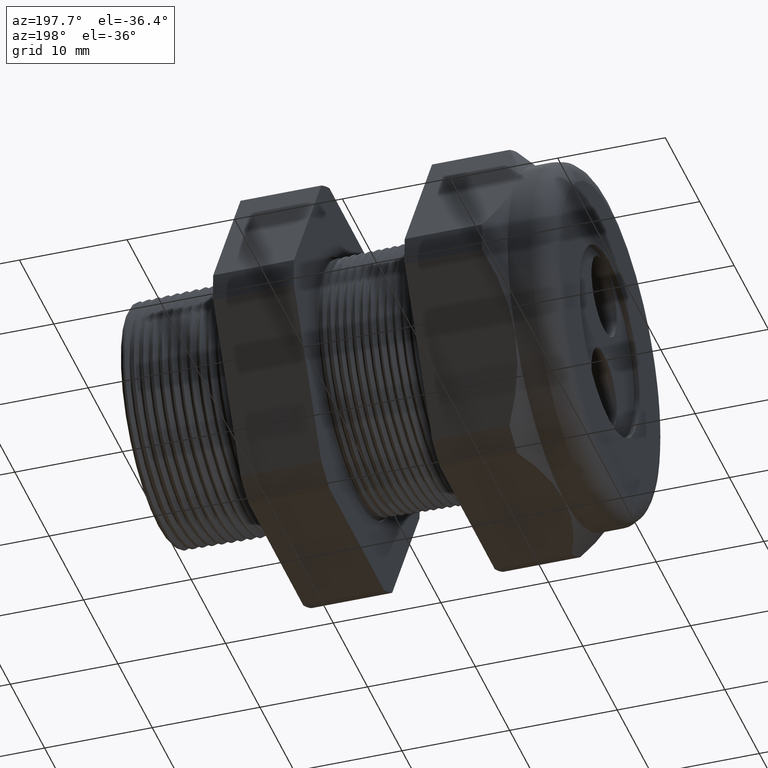
[diagram: clean part render]
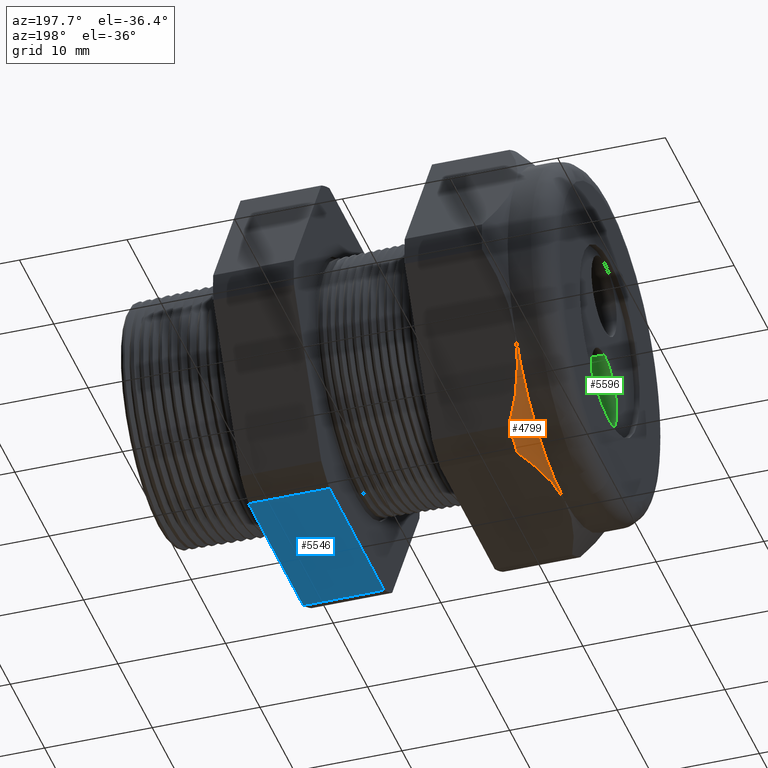
[diagram: same view with three faces highlighted in distinct colors, each labeled with its STEP entity id]
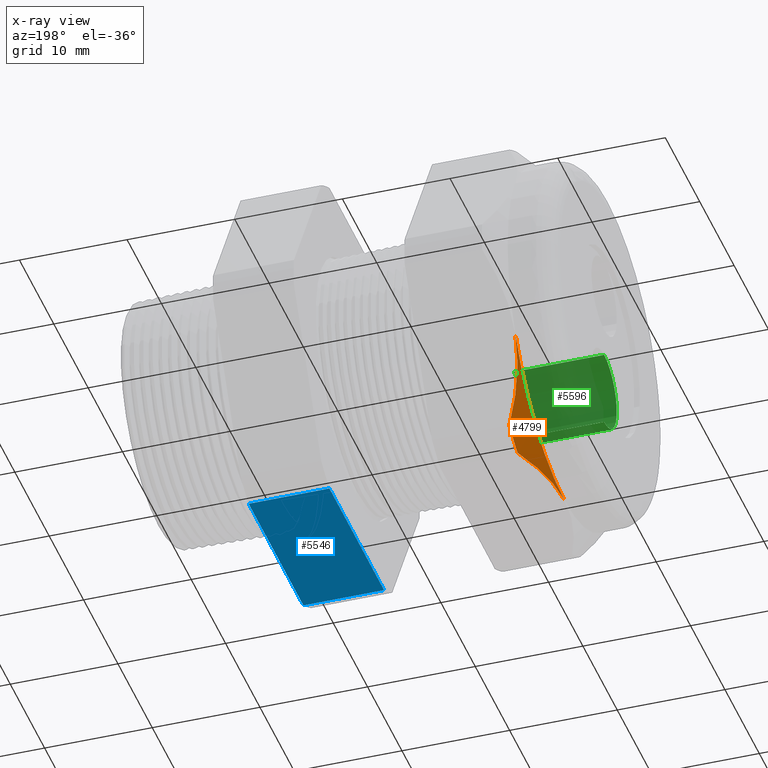
[diagram: x-ray of the same camera — body ghosted, the three highlighted faces saturated]
A machine part, auxiliary view with three faces highlighted in distinct colors.
The next image is the same camera in x-ray (body ghosted, the three faces saturated) — at least one of them is partly hidden behind the body in this view.
Their STEP definitions:

[orange] entity #4799 — the highlighted conical surface has half-angle 45 deg.
#88 = VERTEX_POINT ( 'NONE', #1169 ) ;
#593 = EDGE_CURVE ( 'NONE', #5210, #606, #2186, .T. ) ;
#606 = VERTEX_POINT ( 'NONE', #2222 ) ;
#608 = EDGE_CURVE ( 'NONE', #606, #620, #2221, .T. ) ;
#620 = VERTEX_POINT ( 'NONE', #2194 ) ;
#622 = EDGE_CURVE ( 'NONE', #620, #88, #2259, .T. ) ;
#1169 = CARTESIAN_POINT ( 'NONE',  ( -1.364645669291338500, 0.5629165124598853900, -0.3249999999999999000 ) ) ;
#2176 = CARTESIAN_POINT ( 'NONE',  ( -1.293145669291338600, 0.3131489262315934100, -0.6500000000000001300 ) ) ;
#2177 = CARTESIAN_POINT ( 'NONE',  ( -1.303845930118102500, 0.2884953587440261500, -0.6500000000000003600 ) ) ;
#2178 = CARTESIAN_POINT ( 'NONE',  ( -1.313764154437382800, 0.2632758613625140200, -0.6500000000000001300 ) ) ;
#2179 = CARTESIAN_POINT ( 'NONE',  ( -1.331363564042517700, 0.2120229154253345000, -0.6500000000000001300 ) ) ;
#2180 = CARTESIAN_POINT ( 'NONE',  ( -1.338984633822156300, 0.1861735441654883100, -0.6500000000000003600 ) ) ;
#2181 = CARTESIAN_POINT ( 'NONE',  ( -1.351470867480277300, 0.1339536167969820600, -0.6500000000000003600 ) ) ;
#2182 = CARTESIAN_POINT ( 'NONE',  ( -1.356334391925263900, 0.1075827506458429300, -0.6500000000000000200 ) ) ;
#2183 = CARTESIAN_POINT ( 'NONE',  ( -1.362922968131963000, 0.05424748414116249700, -0.6500000000000001300 ) ) ;
#2184 = CARTESIAN_POINT ( 'NONE',  ( -1.364645669291337800, 0.02720867923416881900, -0.6500000000000000200 ) ) ;
#2185 = CARTESIAN_POINT ( 'NONE',  ( -1.364645669291338500, 0.0000000000000000000, -0.6500000000000001300 ) ) ;
#2186 = B_SPLINE_CURVE_WITH_KNOTS ( 'NONE', 3,
 ( #2185, #2184, #2183, #2182, #2181, #2180, #2179, #2178, #2177, #2176 ),
 .UNSPECIFIED., .F., .F.,
 ( 4, 2, 2, 2, 4 ),
 ( 0.01992119248818193300, 0.02195511425124769100, 0.02398903601431344800, 0.02602295777737920500, 0.02805687954044496300 ),
 .UNSPECIFIED. ) ;
#2194 = CARTESIAN_POINT ( 'NONE',  ( -1.293145669291338600, 0.4063420493440886800, -0.5961949252843791200 ) ) ;
#2217 = DIRECTION ( 'NONE',  ( 0.0000000000000000000, 0.0000000000000000000, -1.000000000000000000 ) ) ;
#2218 = DIRECTION ( 'NONE',  ( 1.000000000000000000, 0.0000000000000000000, 0.0000000000000000000 ) ) ;
#2219 = CARTESIAN_POINT ( 'NONE',  ( -1.293145669291338600, 0.0000000000000000000, 0.0000000000000000000 ) ) ;
#2220 = AXIS2_PLACEMENT_3D ( 'NONE', #2219, #2218, #2217 ) ;
#2221 = CIRCLE ( 'NONE', #2220, 0.7215000000000000300 ) ;
#2222 = CARTESIAN_POINT ( 'NONE',  ( -1.293145669291338600, 0.3131489262315934100, -0.6500000000000001300 ) ) ;
#2247 = CARTESIAN_POINT ( 'NONE',  ( -1.364645669291338500, 0.5629165124598853900, -0.3249999999999999000 ) ) ;
#2248 = CARTESIAN_POINT ( 'NONE',  ( -1.364645669291338200, 0.5561389602113054900, -0.3367390648454929900 ) ) ;
#2249 = CARTESIAN_POINT ( 'NONE',  ( -1.364216759191441600, 0.5492994181763348700, -0.3485854991505651400 ) ) ;
#2250 = CARTESIAN_POINT ( 'NONE',  ( -1.362513212994342700, 0.5357104722797964000, -0.3721222438646743500 ) ) ;
#2251 = CARTESIAN_POINT ( 'NONE',  ( -1.361244147852753300, 0.5289679975772974000, -0.3838005526181506600 ) ) ;
#2252 = CARTESIAN_POINT ( 'NONE',  ( -1.356260635251699500, 0.5088871528993772500, -0.4185815958592073400 ) ) ;
#2253 = CARTESIAN_POINT ( 'NONE',  ( -1.351369503974021000, 0.4956954080403318000, -0.4414303681955598600 ) ) ;
#2254 = CARTESIAN_POINT ( 'NONE',  ( -1.332638942225223800, 0.4566257321431003700, -0.5091010318848138100 ) ) ;
#2255 = CARTESIAN_POINT ( 'NONE',  ( -1.314767232512606100, 0.4312502584378785600, -0.5530526416083856300 ) ) ;
#2256 = CARTESIAN_POINT ( 'NONE',  ( -1.293145669291338600, 0.4063420493440886800, -0.5961949252843791200 ) ) ;
#2259 = B_SPLINE_CURVE_WITH_KNOTS ( 'NONE', 3,
 ( #2256, #2255, #2254, #2253, #2252, #2251, #2250, #2249, #2248, #2247 ),
 .UNSPECIFIED., .F., .F.,
 ( 4, 2, 2, 2, 4 ),
 ( 2.483249165329356400E-007, 0.004082012451910161500, 0.006122894515406973400, 0.007143335547155376400, 0.008163776578903778400 ),
 .UNSPECIFIED. ) ;
#3176 = DIRECTION ( 'NONE',  ( 0.0000000000000000000, 0.0000000000000000000, 1.000000000000000000 ) ) ;
#3177 = DIRECTION ( 'NONE',  ( 1.000000000000000000, 0.0000000000000000000, 0.0000000000000000000 ) ) ;
#3178 = CARTESIAN_POINT ( 'NONE',  ( -1.364645669291338500, 0.0000000000000000000, 0.0000000000000000000 ) ) ;
#3179 = AXIS2_PLACEMENT_3D ( 'NONE', #3178, #3177, #3176 ) ;
#3180 = CONICAL_SURFACE ( 'NONE', #3179, 0.6499999999999999100, 0.7853981633974501700 ) ;
#3182 = FACE_OUTER_BOUND ( 'NONE', #4798, .T. ) ;
#3806 = CARTESIAN_POINT ( 'NONE',  ( -1.364645669291338500, 0.0000000000000000000, -0.6500000000000001300 ) ) ;
#3851 = DIRECTION ( 'NONE',  ( 0.0000000000000000000, 0.0000000000000000000, -1.000000000000000000 ) ) ;
#3852 = DIRECTION ( 'NONE',  ( 1.000000000000000000, 0.0000000000000000000, 0.0000000000000000000 ) ) ;
#3853 = CARTESIAN_POINT ( 'NONE',  ( -1.364645669291338200, 0.0000000000000000000, 0.0000000000000000000 ) ) ;
#3854 = AXIS2_PLACEMENT_3D ( 'NONE', #3853, #3852, #3851 ) ;
#3855 = CIRCLE ( 'NONE', #3854, 0.6499999999999999100 ) ;
#4790 = ORIENTED_EDGE ( 'NONE', *, *, #5222, .T. ) ;
#4791 = ORIENTED_EDGE ( 'NONE', *, *, #608, .F. ) ;
#4792 = ORIENTED_EDGE ( 'NONE', *, *, #622, .F. ) ;
#4793 = ORIENTED_EDGE ( 'NONE', *, *, #593, .F. ) ;
#4798 = EDGE_LOOP ( 'NONE', ( #4790, #4792, #4791, #4793 ) ) ;
#4799 = ADVANCED_FACE ( 'NONE', ( #3182 ), #3180, .T. ) ;
#5210 = VERTEX_POINT ( 'NONE', #3806 ) ;
#5222 = EDGE_CURVE ( 'NONE', #5210, #88, #3855, .T. ) ;

[blue] entity #5546 — the highlighted planar face has unit normal (0, 0, -1).
#786 = VERTEX_POINT ( 'NONE', #2566 ) ;
#788 = EDGE_CURVE ( 'NONE', #786, #789, #2626, .T. ) ;
#789 = VERTEX_POINT ( 'NONE', #2622 ) ;
#890 = VERTEX_POINT ( 'NONE', #2776 ) ;
#893 = EDGE_CURVE ( 'NONE', #890, #894, #2775, .T. ) ;
#894 = VERTEX_POINT ( 'NONE', #2771 ) ;
#2566 = CARTESIAN_POINT ( 'NONE',  ( -0.3100000000000000000, -0.3131489262315934100, -0.6500000000000001300 ) ) ;
#2622 = CARTESIAN_POINT ( 'NONE',  ( -0.3100000000000000000, 0.3131489262315934100, -0.6500000000000001300 ) ) ;
#2623 = DIRECTION ( 'NONE',  ( 0.0000000000000000000, 1.000000000000000000, 0.0000000000000000000 ) ) ;
#2624 = VECTOR ( 'NONE', #2623, 39.37007874015748100 ) ;
#2625 = CARTESIAN_POINT ( 'NONE',  ( -0.3100000000000000000, 1.300000000000000000, -0.6500000000000001300 ) ) ;
#2626 = LINE ( 'NONE', #2625, #2624 ) ;
#2771 = CARTESIAN_POINT ( 'NONE',  ( -0.6052755905511810800, -0.3131489262315934100, -0.6500000000000001300 ) ) ;
#2772 = DIRECTION ( 'NONE',  ( 0.0000000000000000000, -1.000000000000000000, 0.0000000000000000000 ) ) ;
#2773 = VECTOR ( 'NONE', #2772, 39.37007874015748100 ) ;
#2774 = CARTESIAN_POINT ( 'NONE',  ( -0.6052755905511809600, 1.300000000000000000, -0.6500000000000001300 ) ) ;
#2775 = LINE ( 'NONE', #2774, #2773 ) ;
#2776 = CARTESIAN_POINT ( 'NONE',  ( -0.6052755905511810800, 0.3131489262315934100, -0.6500000000000001300 ) ) ;
#4375 = DIRECTION ( 'NONE',  ( -1.000000000000000000, 0.0000000000000000000, 0.0000000000000000000 ) ) ;
#4376 = VECTOR ( 'NONE', #4375, 39.37007874015748100 ) ;
#4377 = CARTESIAN_POINT ( 'NONE',  ( 0.1200000000000000900, -0.3131489262315934100, -0.6500000000000001300 ) ) ;
#4378 = LINE ( 'NONE', #4377, #4376 ) ;
#4379 = DIRECTION ( 'NONE',  ( -1.000000000000000000, 0.0000000000000000000, 0.0000000000000000000 ) ) ;
#4380 = DIRECTION ( 'NONE',  ( 0.0000000000000000000, 0.0000000000000000000, -1.000000000000000000 ) ) ;
#4381 = CARTESIAN_POINT ( 'NONE',  ( 0.1200000000000000900, 0.3131489262315934100, -0.6500000000000001300 ) ) ;
#4382 = AXIS2_PLACEMENT_3D ( 'NONE', #4381, #4380, #4379 ) ;
#4383 = PLANE ( 'NONE',  #4382 ) ;
#4384 = FACE_OUTER_BOUND ( 'NONE', #5541, .T. ) ;
#4385 = DIRECTION ( 'NONE',  ( -1.000000000000000000, 0.0000000000000000000, 0.0000000000000000000 ) ) ;
#4386 = VECTOR ( 'NONE', #4385, 39.37007874015748100 ) ;
#4387 = CARTESIAN_POINT ( 'NONE',  ( 0.1200000000000000900, 0.3131489262315934100, -0.6500000000000001300 ) ) ;
#4388 = LINE ( 'NONE', #4387, #4386 ) ;
#5538 = ORIENTED_EDGE ( 'NONE', *, *, #5545, .F. ) ;
#5539 = ORIENTED_EDGE ( 'NONE', *, *, #893, .F. ) ;
#5541 = EDGE_LOOP ( 'NONE', ( #5543, #5539, #5538, #5544 ) ) ;
#5543 = ORIENTED_EDGE ( 'NONE', *, *, #5549, .T. ) ;
#5544 = ORIENTED_EDGE ( 'NONE', *, *, #788, .F. ) ;
#5545 = EDGE_CURVE ( 'NONE', #789, #890, #4388, .T. ) ;
#5546 = ADVANCED_FACE ( 'NONE', ( #4384 ), #4383, .T. ) ;
#5549 = EDGE_CURVE ( 'NONE', #786, #894, #4378, .T. ) ;

[green] entity #5596 — the highlighted cylindrical surface (partial cylindrical patch) has radius 3.683 mm, axis along (-1, 0, 0).
#3017 = CARTESIAN_POINT ( 'NONE',  ( -1.509999999999999800, 0.0000000000000000000, -0.05441999999999996100 ) ) ;
#3327 = CARTESIAN_POINT ( 'NONE',  ( -1.509999999999999800, 1.775737858763661900E-017, -0.3444199999999999500 ) ) ;
#3388 = DIRECTION ( 'NONE',  ( -1.000000000000000000, 0.0000000000000000000, 0.0000000000000000000 ) ) ;
#3389 = VECTOR ( 'NONE', #3388, 39.37007874015748100 ) ;
#3390 = CARTESIAN_POINT ( 'NONE',  ( 0.1200000000000000900, 1.775737858763661900E-017, -0.3444199999999999500 ) ) ;
#3391 = LINE ( 'NONE', #3390, #3389 ) ;
#3548 = CARTESIAN_POINT ( 'NONE',  ( -1.179999999999999700, 0.0000000000000000000, -0.05441999999999996100 ) ) ;
#4125 = DIRECTION ( 'NONE',  ( 0.0000000000000000000, 0.0000000000000000000, 1.000000000000000000 ) ) ;
#4126 = DIRECTION ( 'NONE',  ( -1.000000000000000000, 0.0000000000000000000, 0.0000000000000000000 ) ) ;
#4127 = CARTESIAN_POINT ( 'NONE',  ( -1.509999999999999800, 0.0000000000000000000, -0.1994199999999999600 ) ) ;
#4128 = AXIS2_PLACEMENT_3D ( 'NONE', #4127, #4126, #4125 ) ;
#4129 = CIRCLE ( 'NONE', #4128, 0.1449999999999999900 ) ;
#4403 = AXIS2_PLACEMENT_3D ( 'NONE', #4466, #4465, #4464 ) ;
#4404 = CIRCLE ( 'NONE', #4403, 0.1449999999999999900 ) ;
#4434 = CYLINDRICAL_SURFACE ( 'NONE', #4496, 0.1449999999999999900 ) ;
#4435 = FACE_OUTER_BOUND ( 'NONE', #5614, .T. ) ;
#4453 = CARTESIAN_POINT ( 'NONE',  ( -1.179999999999999700, 1.775737858763661900E-017, -0.3444199999999999500 ) ) ;
#4464 = DIRECTION ( 'NONE',  ( 0.0000000000000000000, 0.0000000000000000000, 1.000000000000000000 ) ) ;
#4465 = DIRECTION ( 'NONE',  ( -1.000000000000000000, 0.0000000000000000000, 0.0000000000000000000 ) ) ;
#4466 = CARTESIAN_POINT ( 'NONE',  ( -1.179999999999999700, 0.0000000000000000000, -0.1994199999999999600 ) ) ;
#4493 = DIRECTION ( 'NONE',  ( 0.0000000000000000000, 0.0000000000000000000, 1.000000000000000000 ) ) ;
#4494 = DIRECTION ( 'NONE',  ( -1.000000000000000000, 0.0000000000000000000, 0.0000000000000000000 ) ) ;
#4495 = CARTESIAN_POINT ( 'NONE',  ( 0.1200000000000000900, 0.0000000000000000000, -0.1994199999999999600 ) ) ;
#4496 = AXIS2_PLACEMENT_3D ( 'NONE', #4495, #4494, #4493 ) ;
#4578 = DIRECTION ( 'NONE',  ( -1.000000000000000000, 0.0000000000000000000, 0.0000000000000000000 ) ) ;
#4579 = VECTOR ( 'NONE', #4578, 39.37007874015748100 ) ;
#4580 = CARTESIAN_POINT ( 'NONE',  ( 0.1200000000000000900, 0.0000000000000000000, -0.05441999999999996100 ) ) ;
#4581 = LINE ( 'NONE', #4580, #4579 ) ;
#4698 = ORIENTED_EDGE ( 'NONE', *, *, #5390, .T. ) ;
#4701 = VERTEX_POINT ( 'NONE', #3017 ) ;
#4899 = VERTEX_POINT ( 'NONE', #3327 ) ;
#4900 = EDGE_CURVE ( 'NONE', #5580, #4899, #3391, .T. ) ;
#4904 = ORIENTED_EDGE ( 'NONE', *, *, #4900, .T. ) ;
#4991 = VERTEX_POINT ( 'NONE', #3548 ) ;
#5390 = EDGE_CURVE ( 'NONE', #4899, #4701, #4129, .T. ) ;
#5573 = EDGE_CURVE ( 'NONE', #5580, #4991, #4404, .T. ) ;
#5574 = ORIENTED_EDGE ( 'NONE', *, *, #5573, .F. ) ;
#5580 = VERTEX_POINT ( 'NONE', #4453 ) ;
#5596 = ADVANCED_FACE ( 'NONE', ( #4435 ), #4434, .F. ) ;
#5614 = EDGE_LOOP ( 'NONE', ( #5574, #4904, #4698, #5647 ) ) ;
#5647 = ORIENTED_EDGE ( 'NONE', *, *, #5648, .F. ) ;
#5648 = EDGE_CURVE ( 'NONE', #4991, #4701, #4581, .T. ) ;